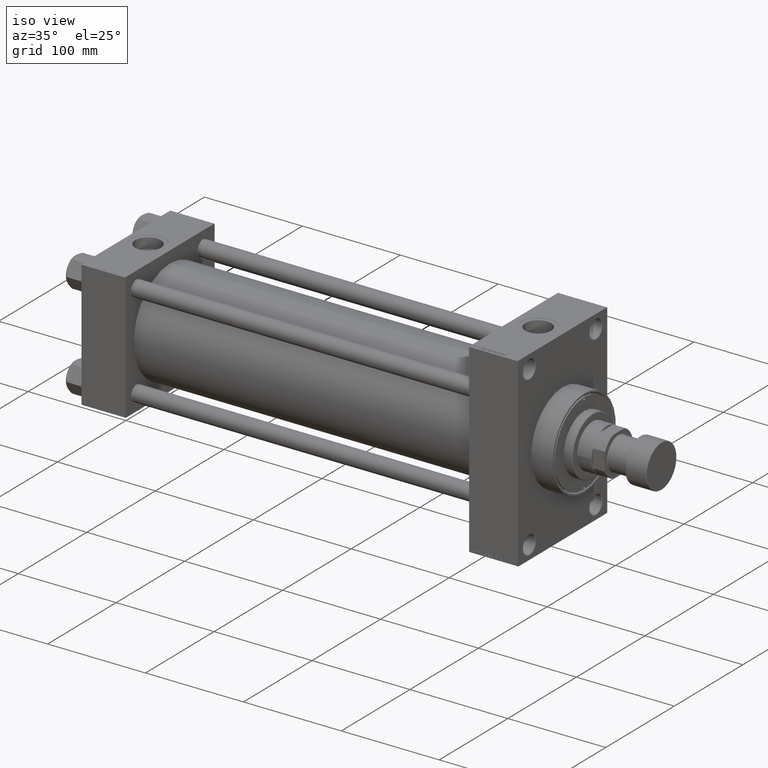
[diagram: clean part render]
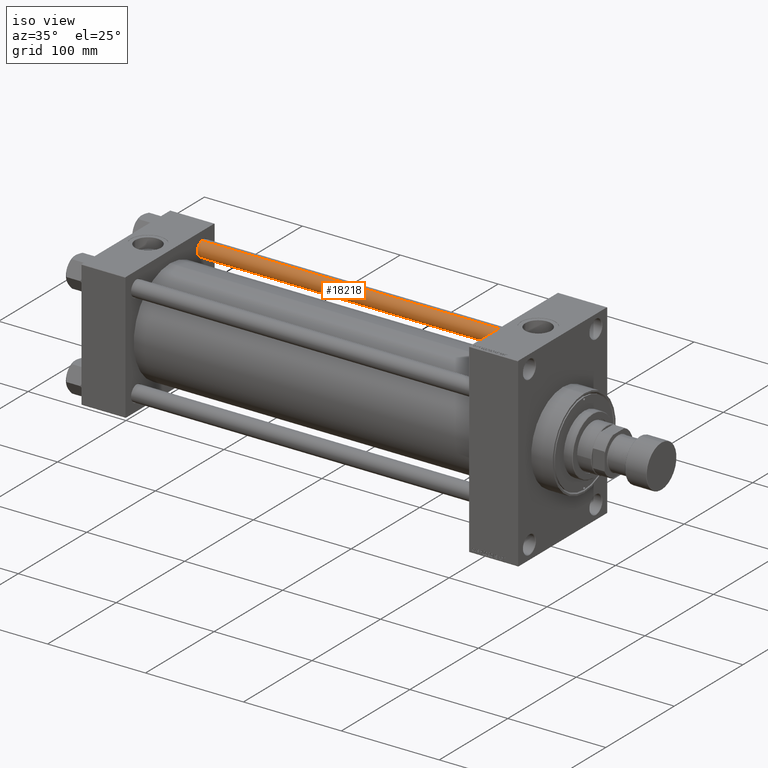
[diagram: same view with one face highlighted and labeled with its STEP entity id]
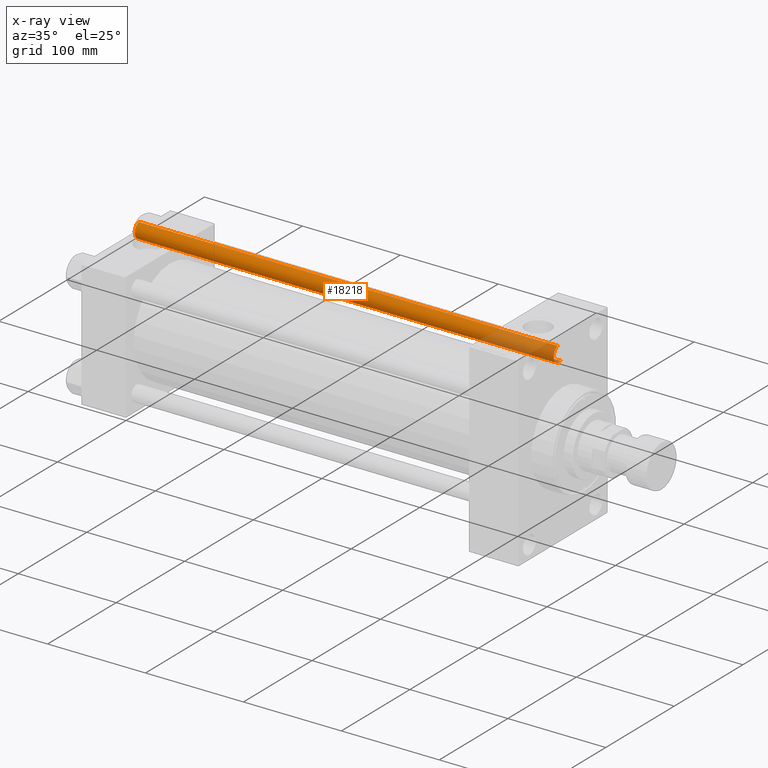
[diagram: x-ray of the same camera — body ghosted, the highlighted face saturated]
A machine part, iso view. The second image highlights one B-rep face of the part: STEP entity #18218.
The next image is the same camera in x-ray: the body ghosted, the highlighted face saturated — about 16% of this face is hidden behind the body in this view.
In plain terms, the highlighted cylindrical surface (edge-blend (fillet) strip) has radius 8 mm, axis along (-1, -0, 0).
Its self-contained STEP definition (entity closure, byte-faithful):
#678 = DIRECTION ( 'NONE',  ( -0.000000000000000000, -0.000000000000000000, 1.000000000000000000 ) ) ;
#6949 = DIRECTION ( 'NONE',  ( 0.000000000000000000, 0.000000000000000000, -1.000000000000000000 ) ) ;
#7224 = DIRECTION ( 'NONE',  ( -0.000000000000000000, -0.000000000000000000, -1.000000000000000000 ) ) ;
#7283 = CYLINDRICAL_SURFACE ( 'NONE', #29841, 8.000000000000000000 ) ;
#7439 = DIRECTION ( 'NONE',  ( 1.000000000000000000, 0.000000000000000000, 0.000000000000000000 ) ) ;
#8716 = VERTEX_POINT ( 'NONE', #26003 ) ;
#10093 = VERTEX_POINT ( 'NONE', #29098 ) ;
#10454 = EDGE_CURVE ( 'NONE', #10093, #27426, #27793, .T. ) ;
#11434 = DIRECTION ( 'NONE',  ( -0.000000000000000000, -0.000000000000000000, -1.000000000000000000 ) ) ;
#14584 = ORIENTED_EDGE ( 'NONE', *, *, #38429, .T. ) ;
#15498 = EDGE_LOOP ( 'NONE', ( #32598, #14584, #36951, #17608 ) ) ;
#17075 = CARTESIAN_POINT ( 'NONE',  ( 8.000000000000000000, 9.797174393178825657E-16, 428.5000000000000000 ) ) ;
#17608 = ORIENTED_EDGE ( 'NONE', *, *, #37702, .T. ) ;
#18134 = VERTEX_POINT ( 'NONE', #17075 ) ;
#18218 = ADVANCED_FACE ( 'NONE', ( #40741 ), #7283, .T. ) ;
#18447 = CARTESIAN_POINT ( 'NONE',  ( 8.000000000000000000, 9.797174393178825657E-16, 429.0000000000000000 ) ) ;
#21028 = CIRCLE ( 'NONE', #36655, 8.000000000000000000 ) ;
#22172 = CARTESIAN_POINT ( 'NONE',  ( 0.000000000000000000, 0.000000000000000000, 429.0000000000000000 ) ) ;
#26003 = CARTESIAN_POINT ( 'NONE',  ( 8.000000000000000000, 9.797174393178825657E-16, 0.4999999999998894218 ) ) ;
#26075 = DIRECTION ( 'NONE',  ( -1.000000000000000000, 0.000000000000000000, 0.000000000000000000 ) ) ;
#27426 = VERTEX_POINT ( 'NONE', #40480 ) ;
#27545 = CARTESIAN_POINT ( 'NONE',  ( -8.000000000000000000, 0.000000000000000000, 429.0000000000000000 ) ) ;
#27793 = LINE ( 'NONE', #27545, #30827 ) ;
#29098 = CARTESIAN_POINT ( 'NONE',  ( -8.000000000000000000, 0.000000000000000000, 428.5000000000000000 ) ) ;
#29841 = AXIS2_PLACEMENT_3D ( 'NONE', #22172, #11434, #26075 ) ;
#30827 = VECTOR ( 'NONE', #45881, 1000.000000000000000 ) ;
#31165 = AXIS2_PLACEMENT_3D ( 'NONE', #34166, #678, #45392 ) ;
#32598 = ORIENTED_EDGE ( 'NONE', *, *, #42738, .F. ) ;
#32716 = CIRCLE ( 'NONE', #31165, 8.000000000000000000 ) ;
#34166 = CARTESIAN_POINT ( 'NONE',  ( 0.000000000000000000, 0.000000000000000000, 0.4999999999998894218 ) ) ;
#34461 = VECTOR ( 'NONE', #7224, 1000.000000000000000 ) ;
#36655 = AXIS2_PLACEMENT_3D ( 'NONE', #40650, #6949, #7439 ) ;
#36951 = ORIENTED_EDGE ( 'NONE', *, *, #10454, .T. ) ;
#37702 = EDGE_CURVE ( 'NONE', #27426, #8716, #32716, .T. ) ;
#38429 = EDGE_CURVE ( 'NONE', #18134, #10093, #21028, .T. ) ;
#40198 = LINE ( 'NONE', #18447, #34461 ) ;
#40480 = CARTESIAN_POINT ( 'NONE',  ( -8.000000000000000000, 0.000000000000000000, 0.4999999999998894218 ) ) ;
#40650 = CARTESIAN_POINT ( 'NONE',  ( 0.000000000000000000, 0.000000000000000000, 428.5000000000000000 ) ) ;
#40741 = FACE_OUTER_BOUND ( 'NONE', #15498, .T. ) ;
#42738 = EDGE_CURVE ( 'NONE', #18134, #8716, #40198, .T. ) ;
#45392 = DIRECTION ( 'NONE',  ( 1.000000000000000000, 0.000000000000000000, 0.000000000000000000 ) ) ;
#45881 = DIRECTION ( 'NONE',  ( -0.000000000000000000, -0.000000000000000000, -1.000000000000000000 ) ) ;